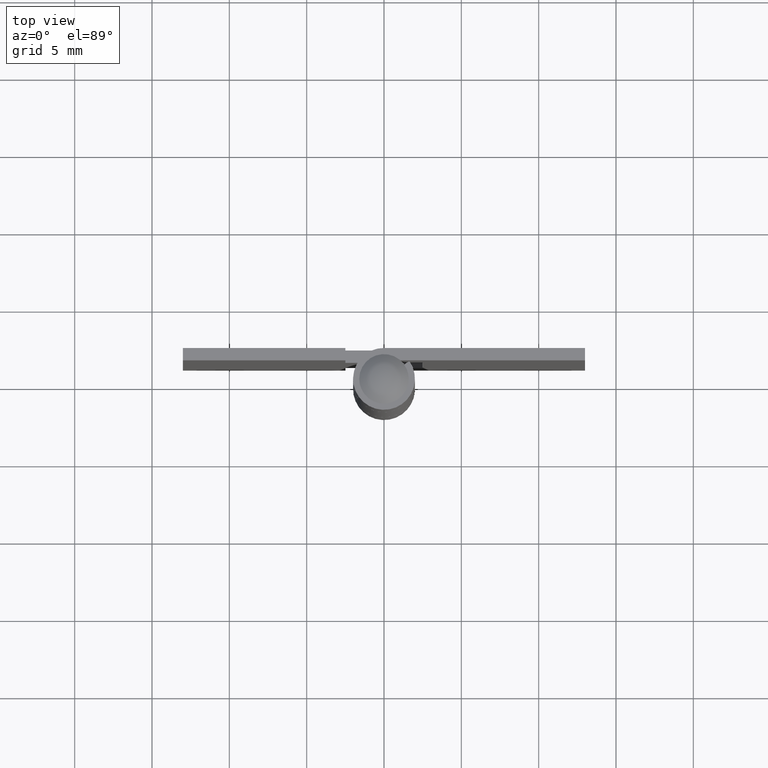
[diagram: clean part render]
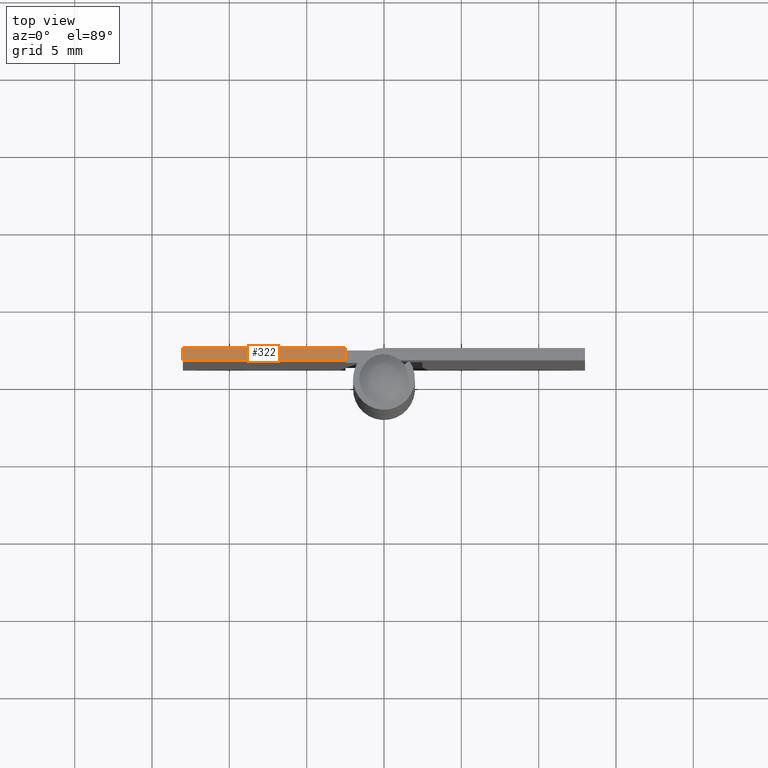
[diagram: same view with one face highlighted and labeled with its STEP entity id]
A machine part, top view. The second image highlights one B-rep face of the part: STEP entity #322.
In plain terms, the highlighted face is a freeform B-spline surface patch.
Its self-contained STEP definition (entity closure, byte-faithful):
#10=CARTESIAN_POINT('',(-2.500000000000000,1.199999999999980,38.0));
#11=VERTEX_POINT('',#10);
#26=CARTESIAN_POINT('',(-2.500000000000000,2.0,38.0));
#27=VERTEX_POINT('',#26);
#33=CARTESIAN_POINT('',(-2.500000000000000,1.199999999999980,38.0));
#34=CARTESIAN_POINT('',(-2.500000000000000,2.0,38.0));
#35=QUASI_UNIFORM_CURVE('',1,(#33,#34),.UNSPECIFIED.,.F.,.U.);
#36=EDGE_CURVE('',#11,#27,#35,.T.);
#295=CARTESIAN_POINT('',(-13.524474979648970,1.160040001550534,38.0));
#296=CARTESIAN_POINT('',(-1.975524738719091,1.160040001550534,38.0));
#297=CARTESIAN_POINT('',(-13.524474979648970,2.039960019907118,38.0));
#298=CARTESIAN_POINT('',(-1.975524738719091,2.039960019907118,38.0));
#299=B_SPLINE_SURFACE_WITH_KNOTS('',1,1,((#295,#297),(#296,#298)),.UNSPECIFIED.,.F.,.F.,.U.,(2,2),(2,2),(0.0,11.548950240929880),(0.041708334948495,0.958291687403247),.UNSPECIFIED.);
#300=CARTESIAN_POINT('',(-13.0,1.200000000000000,38.0));
#301=VERTEX_POINT('',#300);
#302=CARTESIAN_POINT('',(-2.500000000000000,1.199999999999980,38.0));
#303=CARTESIAN_POINT('',(-13.0,1.200000000000000,38.0));
#304=QUASI_UNIFORM_CURVE('',1,(#302,#303),.UNSPECIFIED.,.F.,.U.);
#305=EDGE_CURVE('',#11,#301,#304,.T.);
#306=ORIENTED_EDGE('',*,*,#305,.F.);
#307=ORIENTED_EDGE('',*,*,#36,.T.);
#308=CARTESIAN_POINT('',(-13.0,2.0,38.0));
#309=VERTEX_POINT('',#308);
#310=CARTESIAN_POINT('',(-13.0,2.0,38.0));
#311=CARTESIAN_POINT('',(-2.500000000000000,2.0,38.0));
#312=QUASI_UNIFORM_CURVE('',1,(#310,#311),.UNSPECIFIED.,.F.,.U.);
#313=EDGE_CURVE('',#309,#27,#312,.T.);
#314=ORIENTED_EDGE('',*,*,#313,.F.);
#315=CARTESIAN_POINT('',(-13.0,1.200000000000000,38.0));
#316=CARTESIAN_POINT('',(-13.0,2.0,38.0));
#317=QUASI_UNIFORM_CURVE('',1,(#315,#316),.UNSPECIFIED.,.F.,.U.);
#318=EDGE_CURVE('',#301,#309,#317,.T.);
#319=ORIENTED_EDGE('',*,*,#318,.F.);
#320=EDGE_LOOP('',(#306,#307,#314,#319));
#321=FACE_OUTER_BOUND('',#320,.T.);
#322=ADVANCED_FACE('',(#321),#299,.T.);